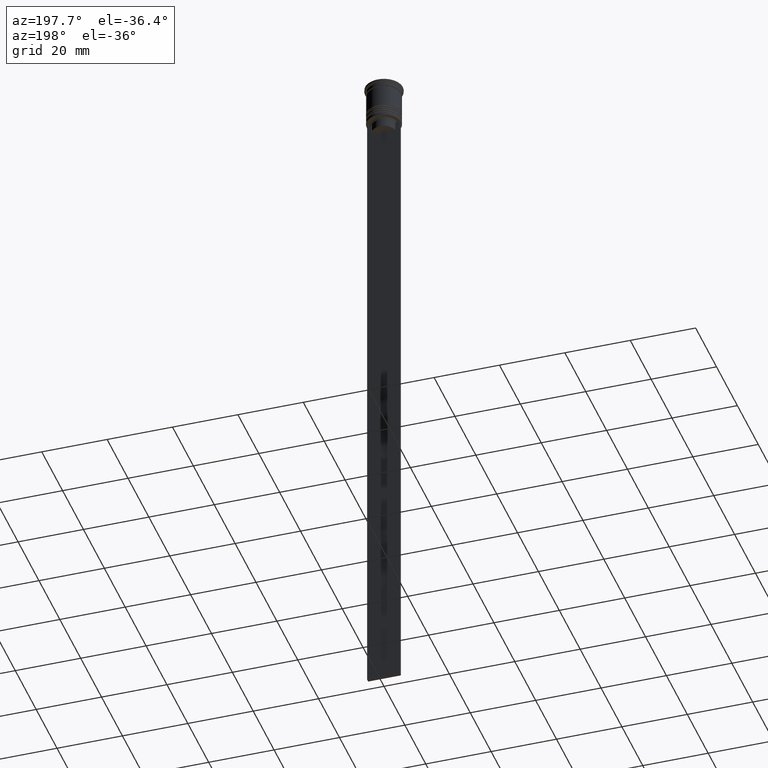
[diagram: clean part render]
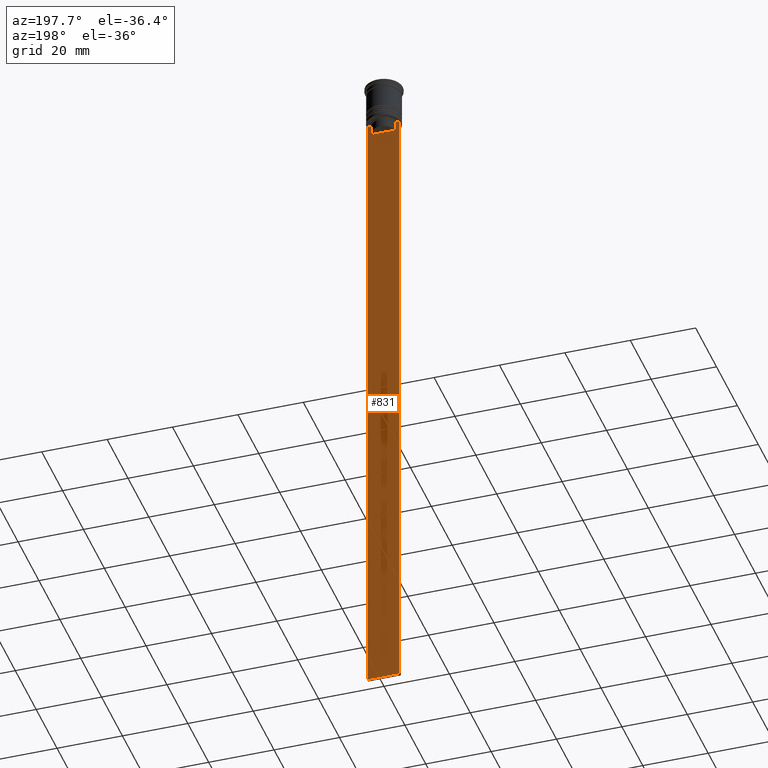
[diagram: same view with one face highlighted and labeled with its STEP entity id]
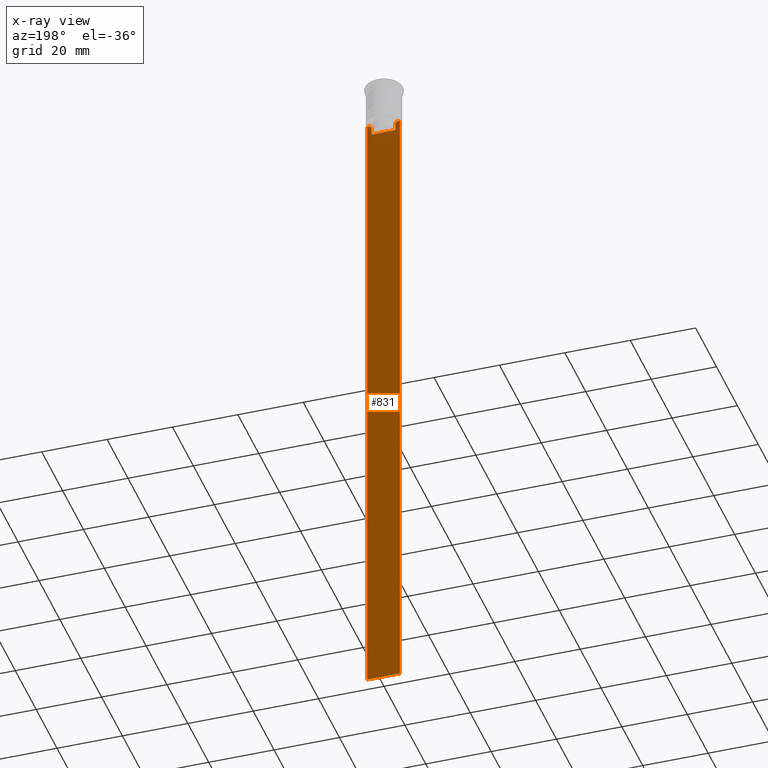
[diagram: x-ray of the same camera — body ghosted, the highlighted face saturated]
A machine part, auxiliary view. The second image highlights one B-rep face of the part: STEP entity #831.
The next image is the same camera in x-ray: the body ghosted, the highlighted face saturated — about 0% of this face is hidden behind the body in this view.
In plain terms, the highlighted planar face has unit normal (0, -1, -0).
Its self-contained STEP definition (entity closure, byte-faithful):
#96 = CARTESIAN_POINT ( 'NONE',  ( 4.119769411022908834, 0.4999999999999991673, -12.50000000000000000 ) ) ;
#122 = VERTEX_POINT ( 'NONE', #589 ) ;
#178 = DIRECTION ( 'NONE',  ( -0.000000000000000000, -0.000000000000000000, 1.000000000000000000 ) ) ;
#220 = CARTESIAN_POINT ( 'NONE',  ( 4.119769411022908834, 0.4999999999999991673, -12.50000000000000000 ) ) ;
#289 = CARTESIAN_POINT ( 'NONE',  ( 5.000000000000000000, 0.4999999999999991673, -12.50000000000000000 ) ) ;
#297 = LINE ( 'NONE', #1403, #2254 ) ;
#325 = ORIENTED_EDGE ( 'NONE', *, *, #999, .T. ) ;
#352 = CARTESIAN_POINT ( 'NONE',  ( 5.000000000000000000, 0.4999999999999991673, -212.5000000000000284 ) ) ;
#361 = VERTEX_POINT ( 'NONE', #778 ) ;
#377 = LINE ( 'NONE', #1697, #723 ) ;
#440 = ORIENTED_EDGE ( 'NONE', *, *, #2091, .T. ) ;
#484 = LINE ( 'NONE', #1890, #802 ) ;
#568 = CARTESIAN_POINT ( 'NONE',  ( 3.615591237958188042, 0.4999999999999991673, -13.00000000000000178 ) ) ;
#589 = CARTESIAN_POINT ( 'NONE',  ( -4.999999999999999112, 0.4999999999999991673, -212.5000000000000284 ) ) ;
#680 = EDGE_CURVE ( 'NONE', #2278, #1487, #1380, .T. ) ;
#723 = VECTOR ( 'NONE', #1336, 1000.000000000000000 ) ;
#741 = ORIENTED_EDGE ( 'NONE', *, *, #1848, .T. ) ;
#754 = CARTESIAN_POINT ( 'NONE',  ( 5.000000000000000000, 0.4999999999999991673, -12.50000000000000000 ) ) ;
#778 = CARTESIAN_POINT ( 'NONE',  ( -4.999999999999999112, 0.4999999999999993339, -12.50000000000000000 ) ) ;
#802 = VECTOR ( 'NONE', #968, 1000.000000000000000 ) ;
#821 = EDGE_CURVE ( 'NONE', #1002, #1337, #297, .T. ) ;
#828 = PLANE ( 'NONE',  #1910 ) ;
#831 = ADVANCED_FACE ( 'NONE', ( #1756 ), #828, .F. ) ;
#845 = DIRECTION ( 'NONE',  ( 0.000000000000000000, -1.000000000000000000, -0.000000000000000000 ) ) ;
#846 = CARTESIAN_POINT ( 'NONE',  ( -4.119769411022908834, 0.4999999999999991673, -12.50000000000000000 ) ) ;
#854 = DIRECTION ( 'NONE',  ( 0.000000000000000000, 0.000000000000000000, -1.000000000000000000 ) ) ;
#872 = VECTOR ( 'NONE', #1010, 1000.000000000000000 ) ;
#878 = EDGE_CURVE ( 'NONE', #879, #2278, #1280, .T. ) ;
#879 = VERTEX_POINT ( 'NONE', #2001 ) ;
#940 = DIRECTION ( 'NONE',  ( -1.000000000000000000, 0.000000000000000000, 0.000000000000000000 ) ) ;
#950 = EDGE_CURVE ( 'NONE', #1487, #1002, #1926, .T. ) ;
#964 = CARTESIAN_POINT ( 'NONE',  ( 3.951794168112527927, 0.4999999999999991673, -12.66675163073525923 ) ) ;
#968 = DIRECTION ( 'NONE',  ( 1.000000000000000000, 0.000000000000000000, 0.000000000000000000 ) ) ;
#982 = CARTESIAN_POINT ( 'NONE',  ( -3.615591237958188042, 0.4999999999999991673, 0.000000000000000000 ) ) ;
#999 = EDGE_CURVE ( 'NONE', #1398, #879, #377, .T. ) ;
#1001 = CARTESIAN_POINT ( 'NONE',  ( 3.783746406711540722, 0.4999999999999991673, -12.83343003979123509 ) ) ;
#1002 = VERTEX_POINT ( 'NONE', #754 ) ;
#1003 = LINE ( 'NONE', #2106, #1055 ) ;
#1010 = DIRECTION ( 'NONE',  ( 1.000000000000000000, 0.000000000000000000, 0.000000000000000000 ) ) ;
#1019 = CARTESIAN_POINT ( 'NONE',  ( -3.783746449387932920, 0.4999999999999991673, -12.83342999751715752 ) ) ;
#1055 = VECTOR ( 'NONE', #1537, 1000.000000000000000 ) ;
#1093 = CARTESIAN_POINT ( 'NONE',  ( 3.615591237958188042, 0.4999999999999991673, 0.000000000000000000 ) ) ;
#1123 = ORIENTED_EDGE ( 'NONE', *, *, #878, .T. ) ;
#1163 = VERTEX_POINT ( 'NONE', #1542 ) ;
#1206 = B_SPLINE_CURVE_WITH_KNOTS ( 'NONE', 3,
 ( #846, #1437, #1019, #1429 ),
 .UNSPECIFIED., .F., .F.,
 ( 4, 4 ),
 ( 0.007067514914986626831, 0.007777582239375527978 ),
 .UNSPECIFIED. ) ;
#1239 = ORIENTED_EDGE ( 'NONE', *, *, #1242, .T. ) ;
#1242 = EDGE_CURVE ( 'NONE', #1163, #1398, #2253, .T. ) ;
#1280 = LINE ( 'NONE', #1093, #1868 ) ;
#1296 = LINE ( 'NONE', #1322, #2279 ) ;
#1322 = CARTESIAN_POINT ( 'NONE',  ( 5.000000000000000000, 0.4999999999999991673, -212.5000000000000284 ) ) ;
#1335 = EDGE_LOOP ( 'NONE', ( #1590, #440, #1239, #325, #1123, #1691, #2261, #1355, #741, #1734 ) ) ;
#1336 = DIRECTION ( 'NONE',  ( 1.000000000000000000, 0.000000000000000000, 0.000000000000000000 ) ) ;
#1337 = VERTEX_POINT ( 'NONE', #352 ) ;
#1350 = DIRECTION ( 'NONE',  ( 0.000000000000000000, 0.000000000000000000, -1.000000000000000000 ) ) ;
#1355 = ORIENTED_EDGE ( 'NONE', *, *, #821, .T. ) ;
#1380 = B_SPLINE_CURVE_WITH_KNOTS ( 'NONE', 3,
 ( #2260, #1001, #964, #96 ),
 .UNSPECIFIED., .F., .F.,
 ( 4, 4 ),
 ( 0.01745179617248911533, 0.01816207215777259493 ),
 .UNSPECIFIED. ) ;
#1398 = VERTEX_POINT ( 'NONE', #1695 ) ;
#1403 = CARTESIAN_POINT ( 'NONE',  ( 5.000000000000000000, 0.4999999999999991673, -2.450124378879110054 ) ) ;
#1429 = CARTESIAN_POINT ( 'NONE',  ( -3.615591237958188042, 0.4999999999999991673, -13.00000000000000178 ) ) ;
#1437 = CARTESIAN_POINT ( 'NONE',  ( -3.951794205566887985, 0.4999999999999991673, -12.66675159355373737 ) ) ;
#1487 = VERTEX_POINT ( 'NONE', #220 ) ;
#1537 = DIRECTION ( 'NONE',  ( 0.000000000000000000, 0.000000000000000000, -1.000000000000000000 ) ) ;
#1542 = CARTESIAN_POINT ( 'NONE',  ( -3.615591237958188042, 0.4999999999999991673, -13.00000000000000178 ) ) ;
#1568 = CARTESIAN_POINT ( 'NONE',  ( 5.000000000000000000, 0.4999999999999991673, -2.450124378879110054 ) ) ;
#1590 = ORIENTED_EDGE ( 'NONE', *, *, #1646, .T. ) ;
#1646 = EDGE_CURVE ( 'NONE', #361, #1800, #484, .T. ) ;
#1691 = ORIENTED_EDGE ( 'NONE', *, *, #680, .T. ) ;
#1695 = CARTESIAN_POINT ( 'NONE',  ( -3.615591237958188486, 0.4999999999999991673, -15.50000000000000000 ) ) ;
#1697 = CARTESIAN_POINT ( 'NONE',  ( 0.000000000000000000, 0.4999999999999991673, -15.50000000000000000 ) ) ;
#1734 = ORIENTED_EDGE ( 'NONE', *, *, #2003, .F. ) ;
#1756 = FACE_OUTER_BOUND ( 'NONE', #1335, .T. ) ;
#1786 = CARTESIAN_POINT ( 'NONE',  ( -4.119769411022908834, 0.4999999999999991673, -12.50000000000000000 ) ) ;
#1800 = VERTEX_POINT ( 'NONE', #1786 ) ;
#1848 = EDGE_CURVE ( 'NONE', #1337, #122, #1296, .T. ) ;
#1868 = VECTOR ( 'NONE', #178, 1000.000000000000000 ) ;
#1890 = CARTESIAN_POINT ( 'NONE',  ( 5.000000000000000000, 0.4999999999999991673, -12.50000000000000000 ) ) ;
#1910 = AXIS2_PLACEMENT_3D ( 'NONE', #1568, #845, #854 ) ;
#1926 = LINE ( 'NONE', #289, #872 ) ;
#2001 = CARTESIAN_POINT ( 'NONE',  ( 3.615591237958188486, 0.4999999999999991673, -15.50000000000000000 ) ) ;
#2003 = EDGE_CURVE ( 'NONE', #361, #122, #1003, .T. ) ;
#2066 = VECTOR ( 'NONE', #1350, 1000.000000000000000 ) ;
#2091 = EDGE_CURVE ( 'NONE', #1800, #1163, #1206, .T. ) ;
#2106 = CARTESIAN_POINT ( 'NONE',  ( -4.999999999999999112, 0.4999999999999991673, -2.450124378879110054 ) ) ;
#2115 = DIRECTION ( 'NONE',  ( 0.000000000000000000, 0.000000000000000000, -1.000000000000000000 ) ) ;
#2253 = LINE ( 'NONE', #982, #2066 ) ;
#2254 = VECTOR ( 'NONE', #2115, 1000.000000000000000 ) ;
#2260 = CARTESIAN_POINT ( 'NONE',  ( 3.615591237958188042, 0.4999999999999991673, -13.00000000000000178 ) ) ;
#2261 = ORIENTED_EDGE ( 'NONE', *, *, #950, .T. ) ;
#2278 = VERTEX_POINT ( 'NONE', #568 ) ;
#2279 = VECTOR ( 'NONE', #940, 1000.000000000000000 ) ;